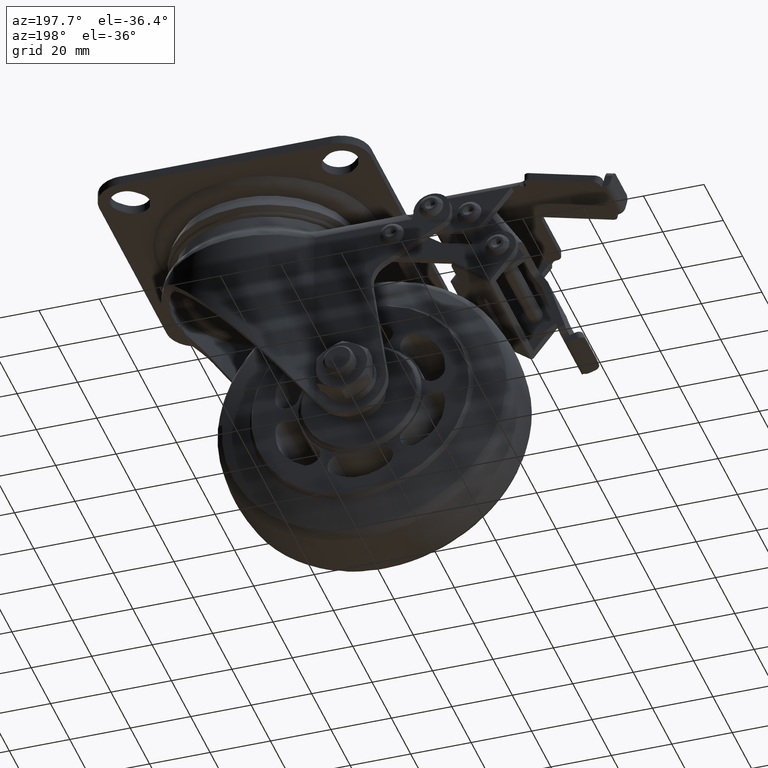
[diagram: clean part render]
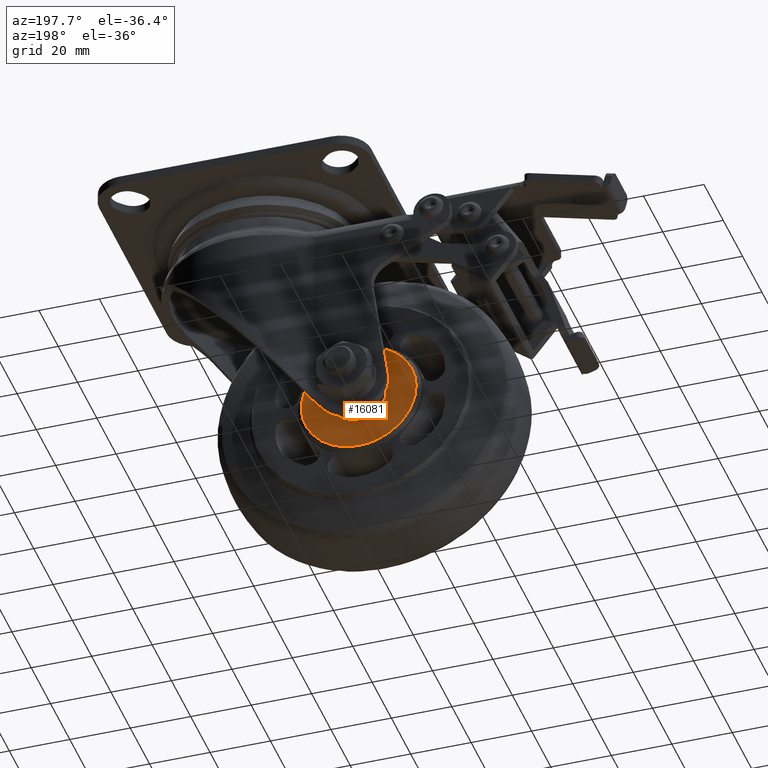
[diagram: same view with one face highlighted and labeled with its STEP entity id]
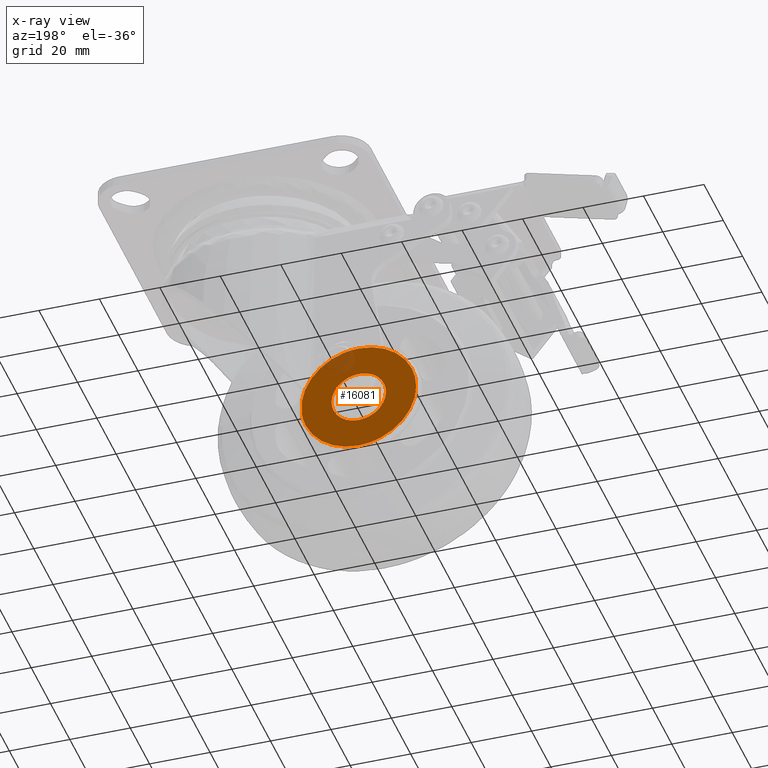
[diagram: x-ray of the same camera — body ghosted, the highlighted face saturated]
A machine part, auxiliary view. The second image highlights one B-rep face of the part: STEP entity #16081.
The next image is the same camera in x-ray: the body ghosted, the highlighted face saturated — about 7% of this face is hidden behind the body in this view.
In plain terms, the highlighted face is a freeform B-spline surface patch.
Its self-contained STEP definition (entity closure, byte-faithful):
#11107=CARTESIAN_POINT('',(-6.872001056218094,16.500000000000011,-5.811678728654286));
#11108=VERTEX_POINT('',#11107);
#11109=CARTESIAN_POINT('',(0.0,16.500000000000000,-9.0));
#11110=VERTEX_POINT('',#11109);
#11111=CARTESIAN_POINT('',(-6.872001056218094,16.500000000000011,-5.811678728654286));
#11112=CARTESIAN_POINT('',(-6.293719039822586,16.500000000000011,-6.496072448582764));
#11113=CARTESIAN_POINT('',(-5.147285806961549,16.499999999999961,-7.499665519148644));
#11114=CARTESIAN_POINT('',(-3.466890331625331,16.500000000000082,-8.349541650242836));
#11115=CARTESIAN_POINT('',(-1.832550449683028,16.499999999999901,-8.864870387915927));
#11116=CARTESIAN_POINT('',(-0.733075484381998,16.499999999999989,-9.000198139264569));
#11117=CARTESIAN_POINT('',(0.0,16.500000000000000,-9.0));
#11118=B_SPLINE_CURVE_WITH_KNOTS('',3,(#11111,#11112,#11113,#11114,#11115,#11116,#11117),.UNSPECIFIED.,.F.,.U.,(4,1,1,1,4),(0.000000051291050,2.687879831050723,4.520510841722459,5.620102536227726,7.819274718417838),.UNSPECIFIED.);
#11119=EDGE_CURVE('',#11108,#11110,#11118,.T.);
#11182=CARTESIAN_POINT('',(-6.195190785215303,16.500000000000011,6.528369081898648));
#11183=VERTEX_POINT('',#11182);
#11189=CARTESIAN_POINT('',(0.0,16.500000000000000,9.0));
#11190=VERTEX_POINT('',#11189);
#11191=CARTESIAN_POINT('',(0.0,16.500000000000000,9.0));
#11192=CARTESIAN_POINT('',(-0.711780156166203,16.500000000000021,9.000143625902370));
#11193=CARTESIAN_POINT('',(-1.957304352874509,16.499999999999989,8.851461471152321));
#11194=CARTESIAN_POINT('',(-3.548001035849723,16.500000000000011,8.313239048374463));
#11195=CARTESIAN_POINT('',(-4.935805642195896,16.500000000000039,7.579443510896686));
#11196=CARTESIAN_POINT('',(-5.756394168974818,16.499999999999989,6.944893746870750));
#11197=CARTESIAN_POINT('',(-6.195190785215303,16.500000000000011,6.528369081898648));
#11198=B_SPLINE_CURVE_WITH_KNOTS('',3,(#11191,#11192,#11193,#11194,#11195,#11196,#11197),.UNSPECIFIED.,.F.,.U.,(4,1,1,1,4),(0.000000041123559,2.135322400985506,3.736792399162272,5.017985808350401,6.833003800456003),.UNSPECIFIED.);
#11199=EDGE_CURVE('',#11190,#11183,#11198,.T.);
#11201=CARTESIAN_POINT('',(8.999999999999812,16.500000000000000,0.000001839252460));
#11202=VERTEX_POINT('',#11201);
#11203=CARTESIAN_POINT('',(8.999999999999812,16.500000000000000,0.000001839252460));
#11204=CARTESIAN_POINT('',(9.000418948319684,16.500000000000011,0.920435457471457));
#11205=CARTESIAN_POINT('',(8.766401050776931,16.499999999999979,2.429607353920399));
#11206=CARTESIAN_POINT('',(8.022858888032804,16.500000000000011,4.163601421162247));
#11207=CARTESIAN_POINT('',(7.233532334902710,16.500000000000000,5.410085520677792));
#11208=CARTESIAN_POINT('',(6.292282590694139,16.499999999999979,6.501324850282529));
#11209=CARTESIAN_POINT('',(5.028474717084821,16.500000000000021,7.525606665864904));
#11210=CARTESIAN_POINT('',(3.501034095831519,16.500000000000028,8.354188404430669));
#11211=CARTESIAN_POINT('',(1.803941657629051,16.500000000000028,8.880327370080272));
#11212=CARTESIAN_POINT('',(0.589047732656242,16.499999999999929,9.000067605953767));
#11213=CARTESIAN_POINT('',(0.0,16.500000000000000,9.0));
#11214=B_SPLINE_CURVE_WITH_KNOTS('',3,(#11203,#11204,#11205,#11206,#11207,#11208,#11209,#11210,#11211,#11212,#11213),.UNSPECIFIED.,.F.,.U.,(4,1,1,1,1,1,1,1,4),(0.000000184292858,2.761172962877092,4.528346594998078,5.632822587459094,7.179019461366523,8.835770516390168,10.492492039036449,12.370111483857571,14.137254609245669),.UNSPECIFIED.);
#11215=EDGE_CURVE('',#11202,#11190,#11214,.T.);
#11217=CARTESIAN_POINT('',(0.0,16.500000000000000,-9.0));
#11218=CARTESIAN_POINT('',(0.662680707483613,16.500000000000011,-9.000129943621859));
#11219=CARTESIAN_POINT('',(1.877523508824186,16.499999999999972,-8.865163726940535));
#11220=CARTESIAN_POINT('',(3.777145891163229,16.500000000000000,-8.250741866082009));
#11221=CARTESIAN_POINT('',(5.470844897170584,16.500000000000028,-7.249634197132186));
#11222=CARTESIAN_POINT('',(6.989981237591073,16.499999999999950,-5.785318741696064));
#11223=CARTESIAN_POINT('',(7.969323883704464,16.500000000000050,-4.299956532892146));
#11224=CARTESIAN_POINT('',(8.774556837454231,16.499999999999840,-2.355877008842401));
#11225=CARTESIAN_POINT('',(9.000607187885017,16.500000000000089,-0.957299352492149));
#11226=CARTESIAN_POINT('',(8.999999999999812,16.500000000000000,0.000001839252460));
#11227=B_SPLINE_CURVE_WITH_KNOTS('',3,(#11217,#11218,#11219,#11220,#11221,#11222,#11223,#11224,#11225,#11226),.UNSPECIFIED.,.F.,.U.,(4,1,1,1,1,1,1,4),(0.000000183654064,1.988021492432443,3.644763589179190,5.964157609966046,7.841739381137804,9.940254490524040,11.265630620239209,14.137256682524880),.UNSPECIFIED.);
#11228=EDGE_CURVE('',#11110,#11202,#11227,.T.);
#11247=CARTESIAN_POINT('',(-8.999999999999812,16.500000000000000,-0.000001839252423));
#11248=VERTEX_POINT('',#11247);
#11249=CARTESIAN_POINT('',(-8.999999999999812,16.500000000000000,-0.000001839252423));
#11250=CARTESIAN_POINT('',(-9.000058998816936,16.499999999999972,-0.625215855985211));
#11251=CARTESIAN_POINT('',(-8.862407424079674,16.500000000000028,-1.941457093019828));
#11252=CARTESIAN_POINT('',(-8.188281452822185,16.500000000000021,-3.951399389166095));
#11253=CARTESIAN_POINT('',(-7.382193522137971,16.499999999999972,-5.208816451698413));
#11254=CARTESIAN_POINT('',(-6.872001056218094,16.500000000000011,-5.811678728654286));
#11255=B_SPLINE_CURVE_WITH_KNOTS('',3,(#11249,#11250,#11251,#11252,#11253,#11254),.UNSPECIFIED.,.F.,.U.,(4,1,1,4),(0.000000036141484,1.875653326455320,3.948738459013281,6.317982444729220),.UNSPECIFIED.);
#11256=EDGE_CURVE('',#11248,#11108,#11255,.T.);
#11258=CARTESIAN_POINT('',(-6.195190785215303,16.500000000000011,6.528369081898648));
#11259=CARTESIAN_POINT('',(-6.830194580492901,16.500000000000021,5.926313932499229));
#11260=CARTESIAN_POINT('',(-7.684536509378190,16.500000000000000,4.837393931330186));
#11261=CARTESIAN_POINT('',(-8.509295219228294,16.500000000000000,3.073913525942710));
#11262=CARTESIAN_POINT('',(-8.912016071308207,16.500000000000028,1.559749886010066));
#11263=CARTESIAN_POINT('',(-9.000029134242176,16.500000000000011,0.494551851339123));
#11264=CARTESIAN_POINT('',(-8.999999999999812,16.500000000000000,-0.000001839252423));
#11265=B_SPLINE_CURVE_WITH_KNOTS('',3,(#11258,#11259,#11260,#11261,#11262,#11263,#11264),.UNSPECIFIED.,.F.,.U.,(4,1,1,1,4),(0.000000049824238,2.624981777247844,4.108631742915424,5.820582966860245,7.304253619606880),.UNSPECIFIED.);
#11266=EDGE_CURVE('',#11183,#11248,#11265,.T.);
#12261=CARTESIAN_POINT('',(18.872921187751128,16.500000000000000,-2.193820364179158));
#12262=VERTEX_POINT('',#12261);
#12273=CARTESIAN_POINT('',(0.0,16.500000000000000,19.0));
#12274=VERTEX_POINT('',#12273);
#12275=CARTESIAN_POINT('',(18.872921187751128,16.500000000000000,-2.193820364179158));
#12276=CARTESIAN_POINT('',(19.003111865422220,16.499999999999979,-1.074831711317747));
#12277=CARTESIAN_POINT('',(19.051152328519152,16.500000000000000,0.725738971618430));
#12278=CARTESIAN_POINT('',(18.754271711105758,16.500000000000021,3.299145211266275));
#12279=CARTESIAN_POINT('',(18.229736371345819,16.499999999999950,5.537830194496538));
#12280=CARTESIAN_POINT('',(17.202604697329630,16.500000000000060,8.278747735341501));
#12281=CARTESIAN_POINT('',(15.579439556741701,16.499999999999940,11.070696303662420));
#12282=CARTESIAN_POINT('',(13.494284290802140,16.500000000000210,13.475146371554180));
#12283=CARTESIAN_POINT('',(11.525583950498010,16.499999999999950,15.161054735816251));
#12284=CARTESIAN_POINT('',(9.198552503555126,16.499999999999901,16.718084324448519));
#12285=CARTESIAN_POINT('',(6.303174829717084,16.500000000000330,18.051333296760589));
#12286=CARTESIAN_POINT('',(3.004107601189341,16.499999999999488,18.848583012165580));
#12287=CARTESIAN_POINT('',(0.917918294487072,16.500000000000249,19.000030605970618));
#12288=CARTESIAN_POINT('',(0.0,16.500000000000000,19.0));
#12289=B_SPLINE_CURVE_WITH_KNOTS('',3,(#12275,#12276,#12277,#12278,#12279,#12280,#12281,#12282,#12283,#12284,#12285,#12286,#12287,#12288),.UNSPECIFIED.,.F.,.U.,(4,1,1,1,1,1,1,1,1,1,1,4),(0.000000130561340,3.379587256158452,5.382373004245519,7.760634506374988,10.264073439280679,14.144430872472981,17.398828347070619,19.777064707196718,21.904997908336590,25.785339950611672,29.290149084217319,32.043912672333107),.UNSPECIFIED.);
#12290=EDGE_CURVE('',#12262,#12274,#12289,.T.);
#12292=CARTESIAN_POINT('',(-19.000000006801461,16.500000000000000,8.852452E-016));
#12293=VERTEX_POINT('',#12292);
#12294=CARTESIAN_POINT('',(0.0,16.500000000000000,19.0));
#12295=CARTESIAN_POINT('',(-1.709935375335441,16.500000000000011,19.000538109576581));
#12296=CARTESIAN_POINT('',(-4.507605086178309,16.500000000000011,18.619684457583752));
#12297=CARTESIAN_POINT('',(-7.797992406767497,16.499999999999979,17.396349802169979));
#12298=CARTESIAN_POINT('',(-10.329648084048181,16.500000000000060,16.023119588678480));
#12299=CARTESIAN_POINT('',(-12.397327774630970,16.499999999999918,14.489661518474060));
#12300=CARTESIAN_POINT('',(-14.379482172094431,16.500000000000000,12.507412368610719));
#12301=CARTESIAN_POINT('',(-16.172796127384711,16.500000000000000,10.150675747263060));
#12302=CARTESIAN_POINT('',(-17.647398331040801,16.499999999999989,7.308468444049831));
#12303=CARTESIAN_POINT('',(-18.732647473872252,16.500000000000039,3.808265530224890));
#12304=CARTESIAN_POINT('',(-19.000249525733210,16.499999999999961,1.399002646295180));
#12305=CARTESIAN_POINT('',(-19.000000006801461,16.500000000000000,8.852452E-016));
#12306=B_SPLINE_CURVE_WITH_KNOTS('',3,(#12294,#12295,#12296,#12297,#12298,#12299,#12300,#12301,#12302,#12303,#12304,#12305),.UNSPECIFIED.,.F.,.U.,(4,1,1,1,1,1,1,1,1,4),(0.000000034427977,5.129662052029751,8.394000107070085,10.492513405209950,13.756850208822680,16.088470223301361,18.886472692372049,22.617154774627071,25.648335436892541,29.845317482102459),.UNSPECIFIED.);
#12307=EDGE_CURVE('',#12274,#12293,#12306,.T.);
#12351=CARTESIAN_POINT('',(0.0,16.500000000000000,-19.0));
#12352=VERTEX_POINT('',#12351);
#12353=CARTESIAN_POINT('',(-19.000000006801461,16.500000000000000,8.852452E-016));
#12354=CARTESIAN_POINT('',(-19.000222936376499,16.500000000000039,-1.399000536777629));
#12355=CARTESIAN_POINT('',(-18.689682478549720,16.499999999999929,-4.196931308803295));
#12356=CARTESIAN_POINT('',(-17.544951189809272,16.500000000000071,-7.524342349484749));
#12357=CARTESIAN_POINT('',(-15.948941582151249,16.499999999999989,-10.466528565052601));
#12358=CARTESIAN_POINT('',(-14.293894512747359,16.499999999999918,-12.641841637859420));
#12359=CARTESIAN_POINT('',(-12.263531183054640,16.500000000000021,-14.574695704202171));
#12360=CARTESIAN_POINT('',(-10.262145383023910,16.499999999999979,-16.059067194074931));
#12361=CARTESIAN_POINT('',(-7.736023819185141,16.500000000000110,-17.449555972592300));
#12362=CARTESIAN_POINT('',(-4.274527873889303,16.499999999999670,-18.664216632393970));
#12363=CARTESIAN_POINT('',(-1.554466982633031,16.500000000000458,-19.000411410019890));
#12364=CARTESIAN_POINT('',(0.0,16.500000000000000,-19.0));
#12365=B_SPLINE_CURVE_WITH_KNOTS('',3,(#12353,#12354,#12355,#12356,#12357,#12358,#12359,#12360,#12361,#12362,#12363,#12364),.UNSPECIFIED.,.F.,.U.,(4,1,1,1,1,1,1,1,1,4),(0.000000034420314,4.196997144823563,8.394000107064255,10.492513405204489,14.223176832724750,16.554800462391508,18.886472692368731,21.684487484893911,25.181999130994910,29.845317482102509),.UNSPECIFIED.);
#12366=EDGE_CURVE('',#12293,#12352,#12365,.T.);
#12368=CARTESIAN_POINT('',(0.0,16.500000000000000,-19.0));
#12369=CARTESIAN_POINT('',(1.295927498729915,16.500000000000000,-19.000159123526188));
#12370=CARTESIAN_POINT('',(3.959709789795676,16.500000000000000,-18.726485025846682));
#12371=CARTESIAN_POINT('',(7.749680223550820,16.500000000000000,-17.501703714001280));
#12372=CARTESIAN_POINT('',(10.696572311385451,16.500000000000028,-15.802767471643589));
#12373=CARTESIAN_POINT('',(12.935642442563360,16.499999999999911,-13.984275594172731));
#12374=CARTESIAN_POINT('',(14.782268131414430,16.499999999999989,-12.055791940947390));
#12375=CARTESIAN_POINT('',(16.397118033961711,16.499999999999989,-9.746324239828704));
#12376=CARTESIAN_POINT('',(18.020478346299839,16.500000000000110,-6.443276741934852));
#12377=CARTESIAN_POINT('',(18.673977451322489,16.499999999999840,-3.910305089205625));
#12378=CARTESIAN_POINT('',(18.872921187751128,16.500000000000000,-2.193820364179158));
#12379=B_SPLINE_CURVE_WITH_KNOTS('',3,(#12368,#12369,#12370,#12371,#12372,#12373,#12374,#12375,#12376,#12377,#12378),.UNSPECIFIED.,.F.,.U.,(4,1,1,1,1,1,1,1,4),(0.000000047473936,3.887769785847667,7.991583345410913,11.879424903512600,14.039252229905680,16.631115012676720,19.870956510892551,22.462836308132431,27.646554582824908),.UNSPECIFIED.);
#12380=EDGE_CURVE('',#12352,#12262,#12379,.T.);
#16062=CARTESIAN_POINT('',(-20.898093969363320,16.500000000000000,20.898099926348628));
#16063=CARTESIAN_POINT('',(-20.898093969363320,16.500000000000000,-20.898100945588052));
#16064=CARTESIAN_POINT('',(20.897975579254911,16.500000000000000,20.898099926348628));
#16065=CARTESIAN_POINT('',(20.897975579254911,16.500000000000000,-20.898100945588052));
#16066=B_SPLINE_SURFACE_WITH_KNOTS('',1,1,((#16062,#16064),(#16063,#16065)),.UNSPECIFIED.,.F.,.F.,.U.,(2,2),(2,2),(0.0,41.796200871936684),(0.0,41.796069548618242),.UNSPECIFIED.);
#16067=ORIENTED_EDGE('',*,*,#12366,.F.);
#16068=ORIENTED_EDGE('',*,*,#12307,.F.);
#16069=ORIENTED_EDGE('',*,*,#12290,.F.);
#16070=ORIENTED_EDGE('',*,*,#12380,.F.);
#16071=EDGE_LOOP('',(#16067,#16068,#16069,#16070));
#16072=FACE_OUTER_BOUND('',#16071,.T.);
#16073=ORIENTED_EDGE('',*,*,#11228,.T.);
#16074=ORIENTED_EDGE('',*,*,#11215,.T.);
#16075=ORIENTED_EDGE('',*,*,#11199,.T.);
#16076=ORIENTED_EDGE('',*,*,#11266,.T.);
#16077=ORIENTED_EDGE('',*,*,#11256,.T.);
#16078=ORIENTED_EDGE('',*,*,#11119,.T.);
#16079=EDGE_LOOP('',(#16073,#16074,#16075,#16076,#16077,#16078));
#16080=FACE_BOUND('',#16079,.T.);
#16081=ADVANCED_FACE('',(#16072,#16080),#16066,.F.);